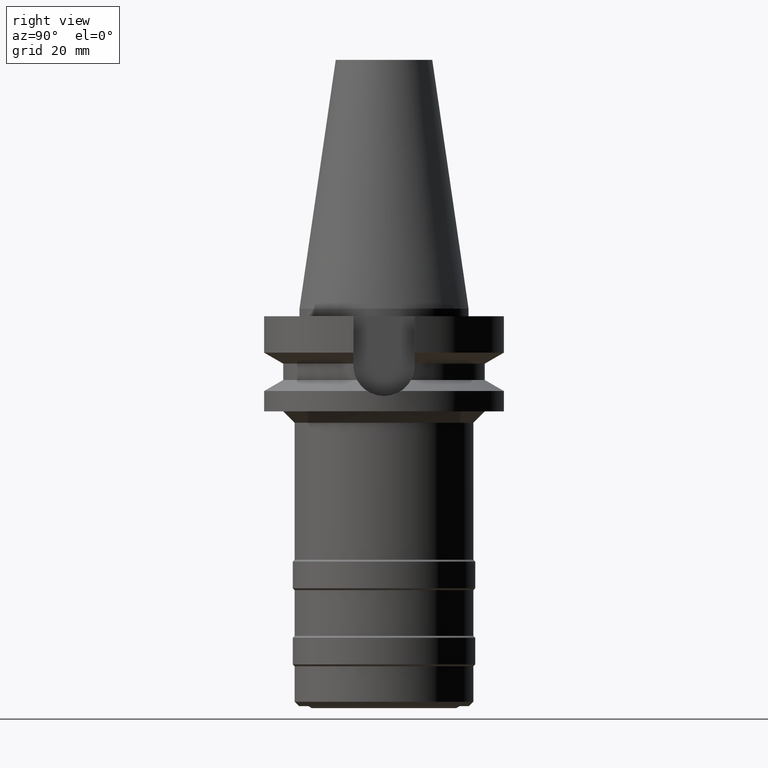
[diagram: clean part render]
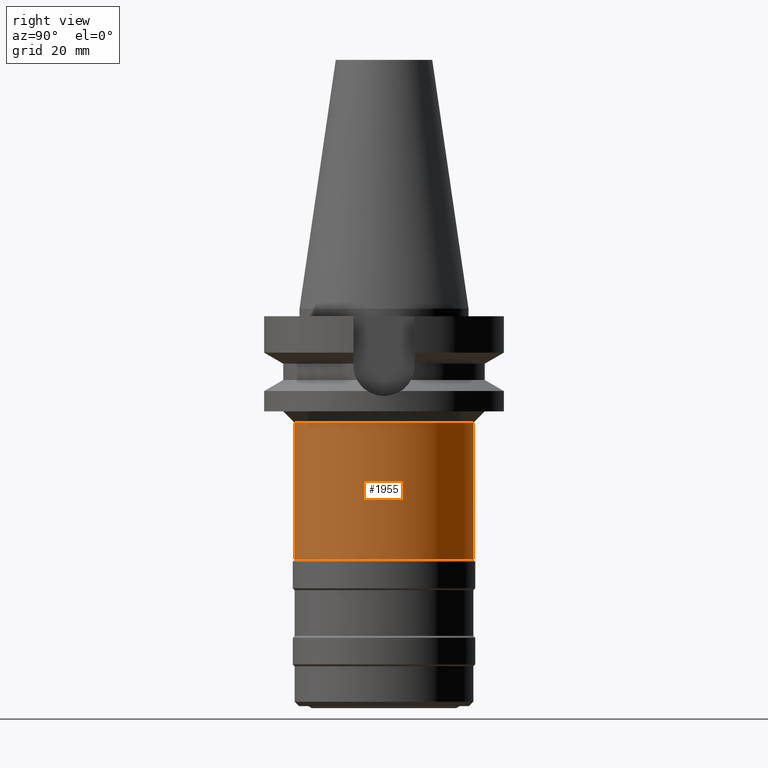
[diagram: same view with one face highlighted and labeled with its STEP entity id]
A machine part, right view. The second image highlights one B-rep face of the part: STEP entity #1955.
In plain terms, the highlighted cylindrical surface (partial cylindrical patch) has radius 23.5 mm, axis along (0, 0, -1).
Its self-contained STEP definition (entity closure, byte-faithful):
#683=CARTESIAN_POINT('',(0.E0,0.E0,-3.E1));
#684=DIRECTION('',(0.E0,0.E0,-1.E0));
#685=DIRECTION('',(0.E0,1.E0,0.E0));
#686=AXIS2_PLACEMENT_3D('',#683,#684,#685);
#691=DIRECTION('',(0.E0,0.E0,-1.E0));
#692=VECTOR('',#691,3.6E1);
#693=CARTESIAN_POINT('',(0.E0,2.35E1,-3.E1));
#694=LINE('',#693,#692);
#698=DIRECTION('',(0.E0,0.E0,-1.E0));
#699=VECTOR('',#698,3.6E1);
#700=CARTESIAN_POINT('',(0.E0,-2.35E1,-3.E1));
#701=LINE('',#700,#699);
#743=CARTESIAN_POINT('',(0.E0,0.E0,-6.6E1));
#744=DIRECTION('',(0.E0,0.E0,1.E0));
#745=DIRECTION('',(0.E0,-1.E0,0.E0));
#746=AXIS2_PLACEMENT_3D('',#743,#744,#745);
#1373=CARTESIAN_POINT('',(0.E0,2.35E1,-6.6E1));
#1374=VERTEX_POINT('',#1373);
#1375=CARTESIAN_POINT('',(0.E0,-2.35E1,-6.6E1));
#1376=VERTEX_POINT('',#1375);
#1377=CARTESIAN_POINT('',(0.E0,2.35E1,-3.E1));
#1378=VERTEX_POINT('',#1377);
#1379=CARTESIAN_POINT('',(0.E0,-2.35E1,-3.E1));
#1380=VERTEX_POINT('',#1379);
#1941=CARTESIAN_POINT('',(0.E0,2.129905713077E-14,7.392E1));
#1942=DIRECTION('',(0.E0,0.E0,-1.E0));
#1943=DIRECTION('',(0.E0,-1.E0,0.E0));
#1944=AXIS2_PLACEMENT_3D('',#1941,#1942,#1943);
#1945=CYLINDRICAL_SURFACE('',#1944,2.35E1);
#1947=ORIENTED_EDGE('',*,*,#1946,.T.);
#1949=ORIENTED_EDGE('',*,*,#1948,.F.);
#1951=ORIENTED_EDGE('',*,*,#1950,.F.);
#1952=ORIENTED_EDGE('',*,*,#1934,.F.);
#1953=EDGE_LOOP('',(#1947,#1949,#1951,#1952));
#1954=FACE_OUTER_BOUND('',#1953,.F.);
#687=CIRCLE('',#686,2.35E1);
#747=CIRCLE('',#746,2.35E1);
#1934=EDGE_CURVE('',#1378,#1380,#687,.T.);
#1946=EDGE_CURVE('',#1378,#1374,#694,.T.);
#1948=EDGE_CURVE('',#1376,#1374,#747,.T.);
#1950=EDGE_CURVE('',#1380,#1376,#701,.T.);
#1955=ADVANCED_FACE('',(#1954),#1945,.T.);